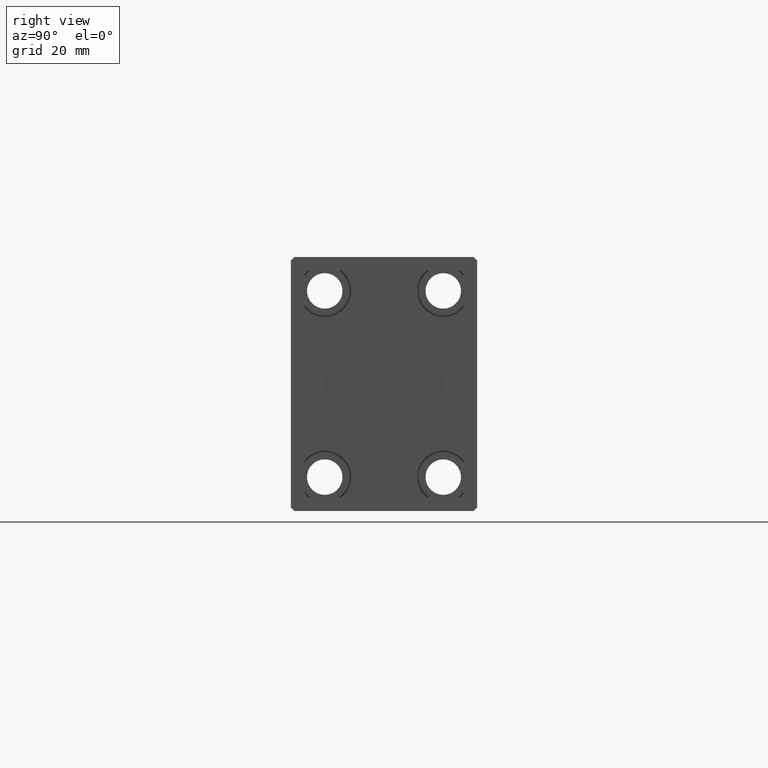
[diagram: clean part render]
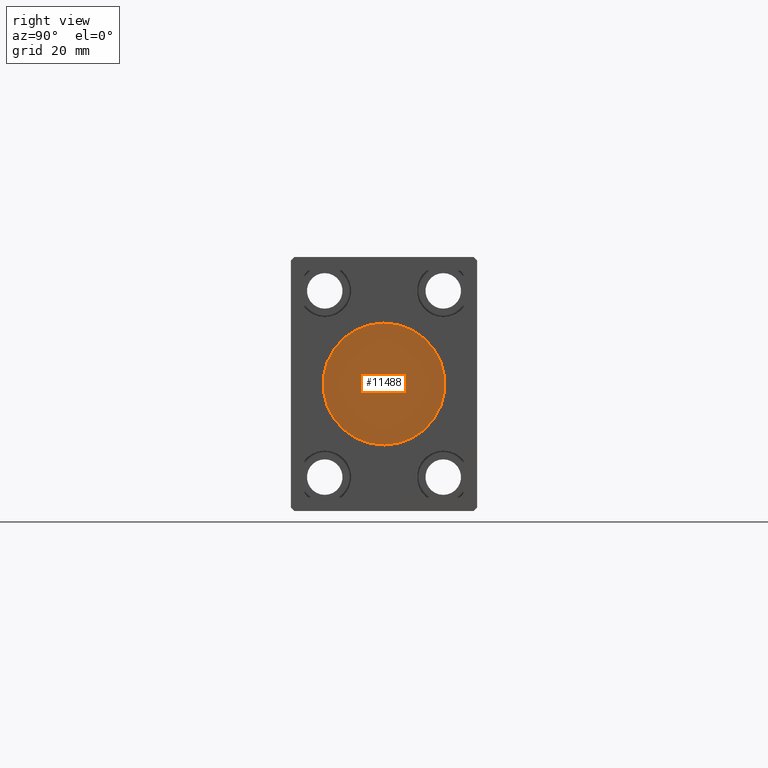
[diagram: same view with one face highlighted and labeled with its STEP entity id]
A machine part, right view. The second image highlights one B-rep face of the part: STEP entity #11488.
In plain terms, the highlighted planar face has unit normal (1, 0, 0).
Its self-contained STEP definition (entity closure, byte-faithful):
#525 = EDGE_LOOP ( 'NONE', ( #12140, #2882 ) ) ;
#984 = EDGE_CURVE ( 'NONE', #36202, #29948, #22009, .T. ) ;
#2046 = CARTESIAN_POINT ( 'NONE',  ( 194.8000000000000114, 0.000000000000000000, 0.000000000000000000 ) ) ;
#2882 = ORIENTED_EDGE ( 'NONE', *, *, #984, .T. ) ;
#5779 = DIRECTION ( 'NONE',  ( 1.000000000000000000, 0.000000000000000000, 0.000000000000000000 ) ) ;
#9319 = DIRECTION ( 'NONE',  ( 1.000000000000000000, 0.000000000000000000, 0.000000000000000000 ) ) ;
#9970 = PLANE ( 'NONE',  #18006 ) ;
#11488 = ADVANCED_FACE ( 'NONE', ( #23121 ), #9970, .T. ) ;
#12140 = ORIENTED_EDGE ( 'NONE', *, *, #20468, .T. ) ;
#12613 = DIRECTION ( 'NONE',  ( 0.000000000000000000, 0.000000000000000000, -1.000000000000000000 ) ) ;
#16660 = DIRECTION ( 'NONE',  ( 0.000000000000000000, 0.000000000000000000, -1.000000000000000000 ) ) ;
#18006 = AXIS2_PLACEMENT_3D ( 'NONE', #19886, #9319, #16660 ) ;
#19886 = CARTESIAN_POINT ( 'NONE',  ( 194.8000000000000114, 0.000000000000000000, 0.000000000000000000 ) ) ;
#20468 = EDGE_CURVE ( 'NONE', #29948, #36202, #26476, .T. ) ;
#22009 = CIRCLE ( 'NONE', #35763, 18.00000000000000000 ) ;
#22149 = CARTESIAN_POINT ( 'NONE',  ( 194.8000000000000114, 0.000000000000000000, 0.000000000000000000 ) ) ;
#23121 = FACE_OUTER_BOUND ( 'NONE', #525, .T. ) ;
#25376 = DIRECTION ( 'NONE',  ( 0.000000000000000000, 0.000000000000000000, -1.000000000000000000 ) ) ;
#26476 = CIRCLE ( 'NONE', #36114, 18.00000000000000000 ) ;
#29948 = VERTEX_POINT ( 'NONE', #33163 ) ;
#33163 = CARTESIAN_POINT ( 'NONE',  ( 194.8000000000000114, 0.000000000000000000, -18.00000000000000000 ) ) ;
#35763 = AXIS2_PLACEMENT_3D ( 'NONE', #22149, #5779, #25376 ) ;
#36114 = AXIS2_PLACEMENT_3D ( 'NONE', #2046, #41501, #12613 ) ;
#36202 = VERTEX_POINT ( 'NONE', #40953 ) ;
#40953 = CARTESIAN_POINT ( 'NONE',  ( 194.8000000000000114, 2.204364238465235428E-15, 18.00000000000000000 ) ) ;
#41501 = DIRECTION ( 'NONE',  ( 1.000000000000000000, 0.000000000000000000, 0.000000000000000000 ) ) ;